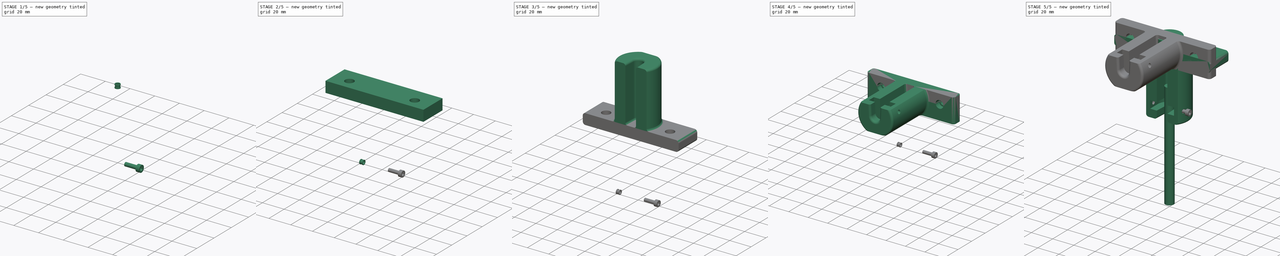
[diagram: build sequence overview — one tinted view per stage of 5, left to right]
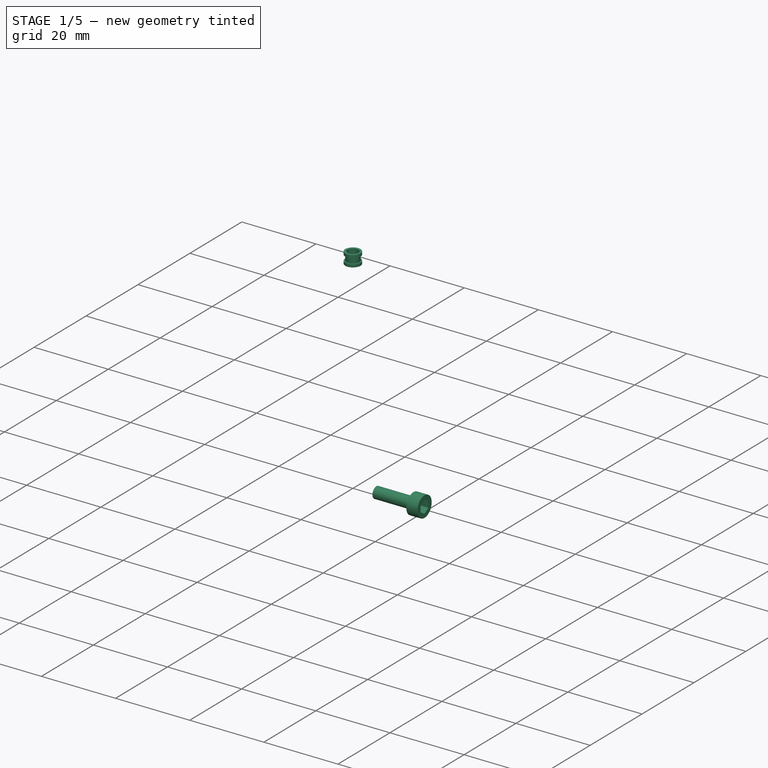
[diagram: stage 1 of 5 — iso view after this stage's code; geometry added in this stage tinted green]
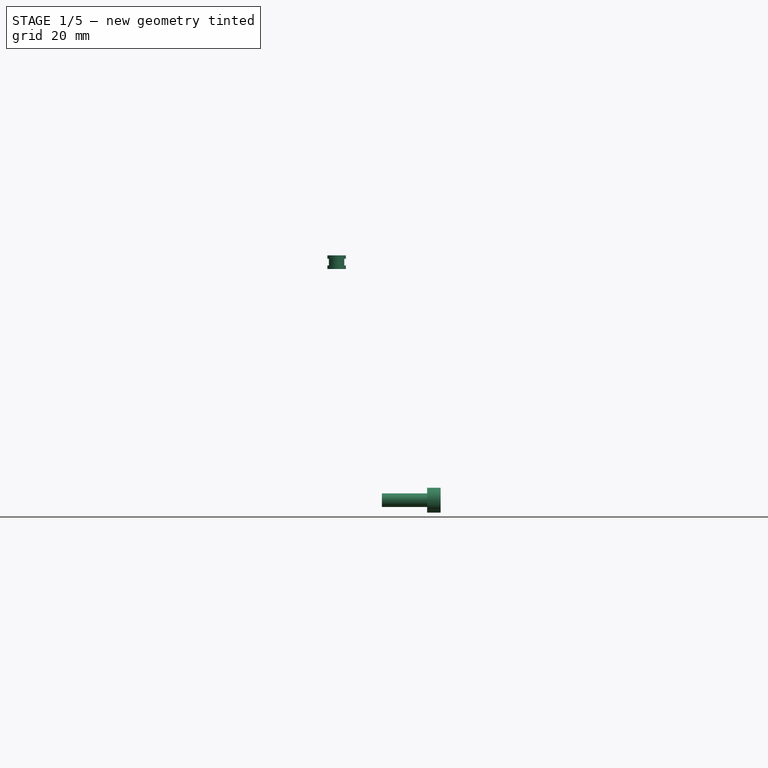
[diagram: stage 1 of 5 — front view after this stage's code; geometry added in this stage tinted green]
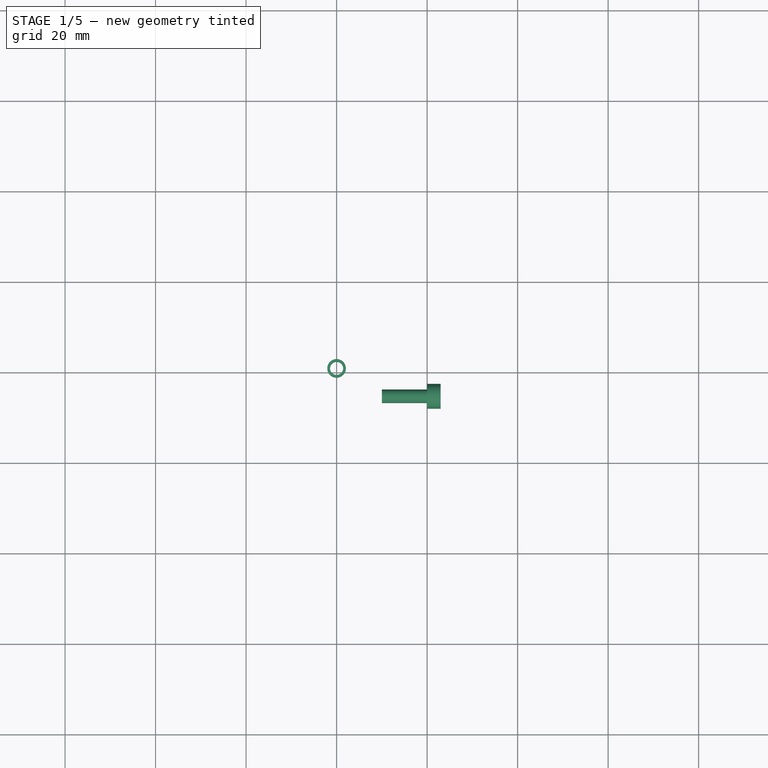
[diagram: stage 1 of 5 — top view after this stage's code; geometry added in this stage tinted green]
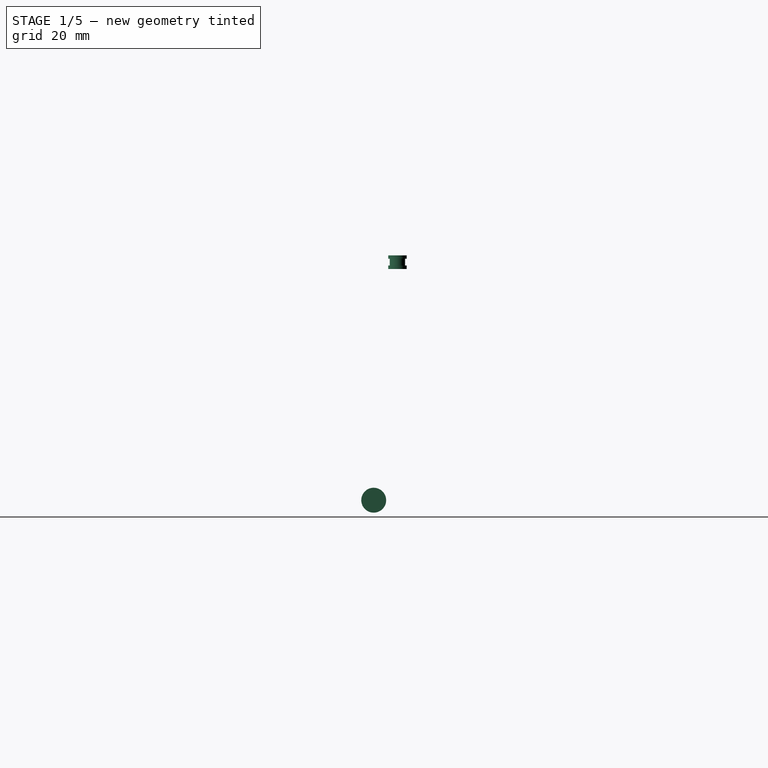
[diagram: stage 1 of 5 — right view after this stage's code; geometry added in this stage tinted green]
FCSTD DOCUMENT  (FreeCAD 0.17R)
Label: Z-Axis-Guide
License: All rights reserved
LicenseURL: http://en.wikipedia.org/wiki/All_rights_reserved
objects: Sketcher::SketchObject×11, PartDesign::Pad×5, PartDesign::Body×5, PartDesign::Pocket×4, App::DocumentObjectGroup×4, PartDesign::FeatureBase×4, PartDesign::Fillet×3, PartDesign::Revolution×2, Part::Cylinder×1, Part::Cut×1
note: 47 computed .brp shape members not serialized (recipe doc carries the construction recipe); baked Part::Feature solids carry a one-line shape summary decoded from their .brp

FEATURE [Sketcher::SketchObject] Sketch008
  MapMode = 5
  Placement = pos=(0,0,0) rot=(1,0,0;1.5708rad)
  Support = -> [XZ_Plane003]
  sketch-geometry (8):
    g0: LineSegment StartX=1.45 StartY=0 StartZ=0 EndX=2.05 EndY=0 EndZ=0
    g1: LineSegment StartX=2.05 StartY=0 StartZ=0 EndX=2.05 EndY=0.75 EndZ=0
    g2: LineSegment StartX=2.05 StartY=0.75 StartZ=0 EndX=1.7 EndY=0.75 EndZ=0
    g3: LineSegment StartX=1.7 StartY=0.75 StartZ=0 EndX=1.7 EndY=2.25 EndZ=0
    g4: LineSegment StartX=1.7 StartY=2.25 StartZ=0 EndX=2.05 EndY=2.25 EndZ=0
    g5: LineSegment StartX=2.05 StartY=2.25 StartZ=0 EndX=2.05 EndY=3 EndZ=0
    g6: LineSegment StartX=2.05 StartY=3 StartZ=0 EndX=1.45 EndY=3 EndZ=0
    g7: LineSegment StartX=1.45 StartY=3 StartZ=0 EndX=1.45 EndY=0 EndZ=0
  constraints (24):
    c: PointOnObject(g0,g-1)
    c: Horizontal(g0)
    c: Coincident(g0,g1)
    c: Vertical(g1)
    c: Coincident(g1,g2)
    c: Horizontal(g2)
    c: Coincident(g2,g3)
    c: Vertical(g3)
    c: Coincident(g3,g4)
    c: Horizontal(g4)
    c: Coincident(g4,g5)
    c: Vertical(g5)
    c: Coincident(g5,g6)
    c: Horizontal(g6)
    c: Coincident(g6,g7)
    c: Vertical(g7)
    c: Coincident(g0,g7)
    c: DistanceX(g-1,g0) = 1.45
    c: DistanceX(g-1,g0) = 2.05
    c: DistanceX(g-1,g2) = 1.7
    c: Equal(g2,g4)
    c: Equal(g5,g1)
    c: DistanceY(g0,g5) = 3
    c: DistanceY(g3,g3) = 1.5
FEATURE [PartDesign::Revolution] Revolution
  Angle = 360
  Axis = (0,0,1)
  Base = (0,0,0)
  Placement = pos=(0,0,0) rot=(1,0,0;1.5708rad)
  Profile = -> Sketch008
  ReferenceAxis = -> Sketch008 [V_Axis]
  Reversed = true
FEATURE [Sketcher::SketchObject] Sketch009
  MapMode = 5
  Support = -> [XY_Plane004]
  sketch-geometry (6):
    g0: LineSegment StartX=0 StartY=0 StartZ=0 EndX=2.75 EndY=0 EndZ=0
    g1: LineSegment StartX=2.75 StartY=0 StartZ=0 EndX=2.75 EndY=3 EndZ=0
    g2: LineSegment StartX=2.75 StartY=3 StartZ=0 EndX=1.5 EndY=3 EndZ=0
    g3: LineSegment StartX=1.5 StartY=3 StartZ=0 EndX=1.5 EndY=13 EndZ=0
    g4: LineSegment StartX=1.5 StartY=13 StartZ=0 EndX=0 EndY=13 EndZ=0
    g5: LineSegment StartX=0 StartY=13 StartZ=0 EndX=0 EndY=0 EndZ=0
  constraints (17):
    c: Coincident(g-1,g0)
    c: Horizontal(g0)
    c: Coincident(g0,g1)
    c: Vertical(g1)
    c: Coincident(g1,g2)
    c: Horizontal(g2)
    c: Coincident(g2,g3)
    c: Vertical(g3)
    c: Coincident(g3,g4)
    c: PointOnObject(g4,g-2)
    c: Horizontal(g4)
    c: Coincident(g4,g5)
    c: Coincident(g5,g0)
    c: DistanceX(g0,g0) = 2.75
    c: DistanceX(g-1,g2) = 1.5
    c: DistanceY(g1,g1) = 3
    c: DistanceY(g3,g3) = 10
FEATURE [PartDesign::Revolution] Revolution001
  Angle = 360
  Axis = (0,1,0)
  Base = (0,0,0)
  Profile = -> Sketch009
  ReferenceAxis = -> Sketch009 [V_Axis]
  Reversed = true
FEATURE [Sketcher::SketchObject] Sketch010
  MapMode = 5
  Placement = pos=(0,0,0) rot=(1,0,0;1.5708rad)
  Support = -> [Revolution001]
  sketch-geometry (7):
    g0: LineSegment StartX=1.5 StartY=-0.866025 StartZ=0 EndX=1.5 EndY=0.866025 EndZ=0
    g1: LineSegment StartX=1.5 StartY=0.866025 StartZ=0 EndX=0 EndY=1.73205 EndZ=0
    g2: LineSegment StartX=0 StartY=1.73205 StartZ=0 EndX=-1.5 EndY=0.866025 EndZ=0
    g3: LineSegment StartX=-1.5 StartY=0.866025 StartZ=0 EndX=-1.5 EndY=-0.866025 EndZ=0
    g4: LineSegment StartX=-1.5 StartY=-0.866025 StartZ=0 EndX=0 EndY=-1.73205 EndZ=0
    g5: LineSegment StartX=0 StartY=-1.73205 StartZ=0 EndX=1.5 EndY=-0.866025 EndZ=0
    g6: Circle [constr] CenterX=0 CenterY=0 CenterZ=0 NormalX=0 NormalY=0 NormalZ=1 AngleXU=0 Radius=1.73205
  constraints (16):
    c: Coincident(g0,g1)
    c: Coincident(g1,g2)
    c: Coincident(g2,g3)
    c: Coincident(g3,g4)
    c: Coincident(g4,g5)
    c: Coincident(g5,g0)
    c: Equal(g0, g1-g5) x5
    c: PointOnObject(g0,g6)
    c: PointOnObject(g1,g6)
    c: PointOnObject(g2,g6)
    c: PointOnObject(g3,g6)
    c: PointOnObject(g4,g6)
    c: PointOnObject(g5,g6)
    c: Coincident(g6,g-1)
    c: Vertical(g0)
    c: DistanceX(g2,g0) = 3
FEATURE [PartDesign::Pocket] Pocket003
  BaseFeature = -> Revolution001
  Length = 2
  Length2 = 100
  Profile = -> Sketch010
  Type = 0
FEATURE [PartDesign::Body] Body004  label="M3x10_Bearing_Fixation"
  Group = -> [Sketch009,Revolution001,Sketch010,Pocket003]
  Origin = -> Origin004
  Placement = pos=(-23,-5.25,-51.1) rot=(0,0,-1;1.5708rad)
  Tip = -> Pocket003
FEATURE [PartDesign::FeatureBase] Clone005  label="M3x10_Bearing_Fixation_2"
  BaseFeature = -> Body004
  Placement = pos=(23,-5.25,-51.1) rot=(0,0,1;1.5708rad)
FEATURE [App::DocumentObjectGroup] Group001  label="Assembly"
  Group = -> [Clone,Body003,Clone004,Body004,Clone005,Group003]
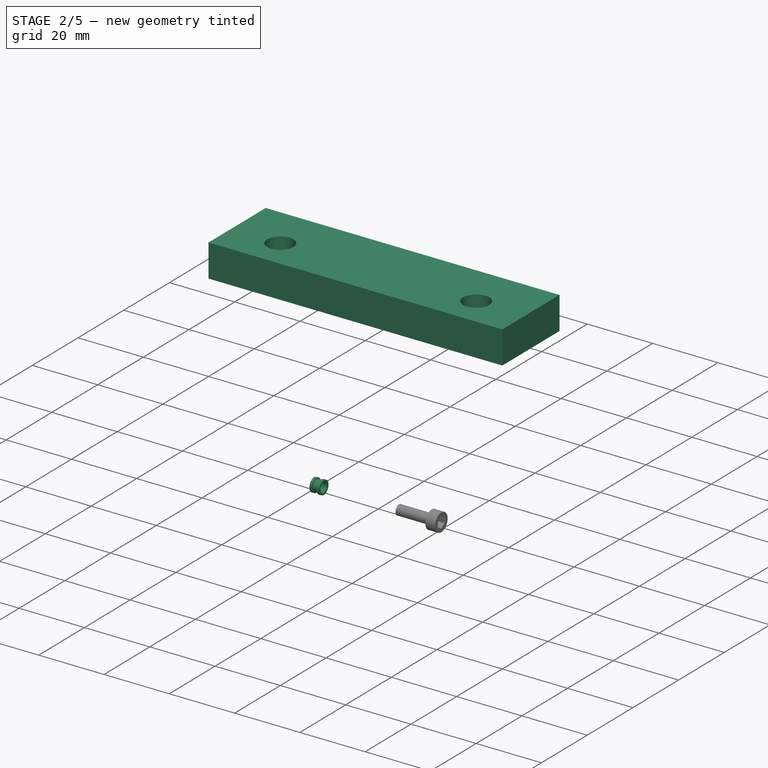
[diagram: stage 2 of 5 — iso view after this stage's code; geometry added in this stage tinted green]
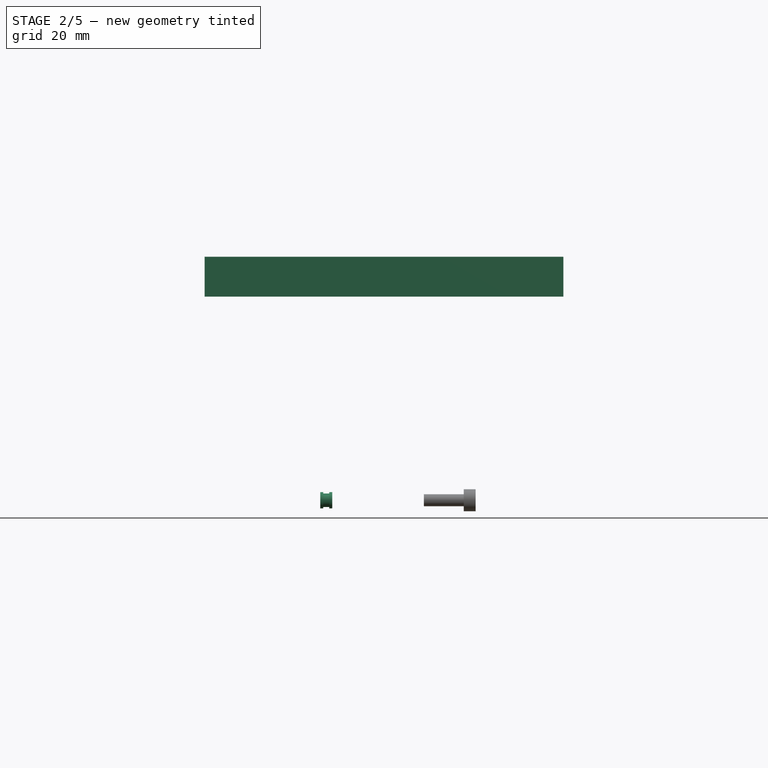
[diagram: stage 2 of 5 — front view after this stage's code; geometry added in this stage tinted green]
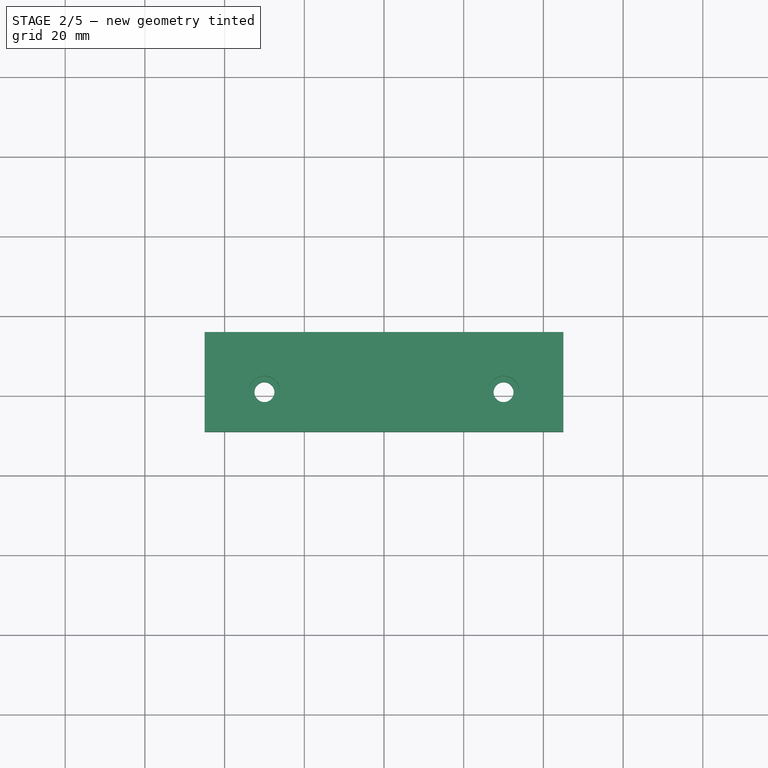
[diagram: stage 2 of 5 — top view after this stage's code; geometry added in this stage tinted green]
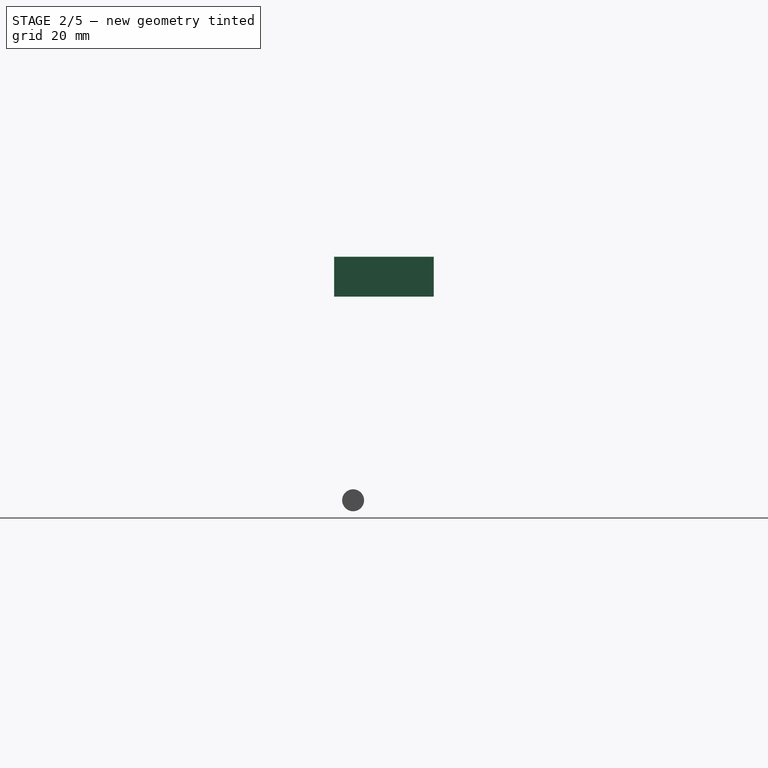
[diagram: stage 2 of 5 — right view after this stage's code; geometry added in this stage tinted green]
FEATURE [Sketcher::SketchObject] Sketch
  MapMode = 5
  Support = -> [XY_Plane]
  sketch-geometry (4):
    g0: LineSegment StartX=-45 StartY=15 StartZ=0 EndX=45 EndY=15 EndZ=0
    g1: LineSegment StartX=45 StartY=15 StartZ=0 EndX=45 EndY=-10 EndZ=0
    g2: LineSegment StartX=45 StartY=-10 StartZ=0 EndX=-45 EndY=-10 EndZ=0
    g3: LineSegment StartX=-45 StartY=-10 StartZ=0 EndX=-45 EndY=15 EndZ=0
  constraints (12):
    c: Coincident(g0,g1)
    c: Coincident(g1,g2)
    c: Coincident(g2,g3)
    c: Coincident(g3,g0)
    c: Horizontal(g0)
    c: Horizontal(g2)
    c: Vertical(g1)
    c: Vertical(g3)
    c: Symmetric(g0,g0,g-2)
    c: DistanceY(g1,g1) = 25
    c: DistanceX(g0,g0) = 90
    c: DistanceY(g1,g-1) = 10
FEATURE [PartDesign::Pad] Pad  label="BB_Baseplate"
  Length = 10
  Length2 = 100
  Profile = -> Sketch
  Type = 0
FEATURE [Sketcher::SketchObject] Sketch001
  ExternalGeometry = -> [Pad]
  MapMode = 5
  Placement = pos=(0,0,0) rot=(1,0,0;3.14159rad)
  Support = -> [Pad]
  sketch-geometry (4):
    g0: Circle CenterX=-30 CenterY=0 CenterZ=0 NormalX=0 NormalY=0 NormalZ=1 AngleXU=0 Radius=2.5
    g1: Circle CenterX=30 CenterY=0 CenterZ=0 NormalX=0 NormalY=0 NormalZ=1 AngleXU=0 Radius=2.5
    g2: GeomPoint X=0 Y=10 Z=0
    g3: LineSegment [constr] StartX=30 StartY=10 StartZ=0 EndX=30 EndY=0 EndZ=0
  constraints (11):
    c: PointOnObject(g0,g-1)
    c: PointOnObject(g1,g-1)
    c: Symmetric(g1,g0,g-2)
    c: Radius(g1) = 2.5
    c: Equal(g1,g0)
    c: PointOnObject(g2,g-4)
    c: PointOnObject(g2,g-2)
    c: PointOnObject(g3,g-4)
    c: Coincident(g3,g1)
    c: Vertical(g3)
    c: DistanceX(g2,g3) = 30
FEATURE [PartDesign::Pocket] Pocket  label="BB_Screwholes"
  BaseFeature = -> Pad
  Length = 5
  Length2 = 100
  Profile = -> Sketch001
  Type = 1
FEATURE [Sketcher::SketchObject] Sketch002
  ExternalGeometry = -> [Pocket]
  MapMode = 5
  Placement = pos=(0,0,10) rot=(0,0,1;0rad)
  Support = -> [Pocket]
  sketch-geometry (2):
    g0: Circle CenterX=-30 CenterY=0 CenterZ=0 NormalX=0 NormalY=0 NormalZ=1 AngleXU=0 Radius=4
    g1: Circle CenterX=30 CenterY=0 CenterZ=0 NormalX=0 NormalY=0 NormalZ=1 AngleXU=0 Radius=4
  constraints (4):
    c: Coincident(g0,g-3)
    c: Coincident(g1,g-4)
    c: Radius(g1) = 4
    c: Equal(g1,g0)
FEATURE [PartDesign::Pocket] Pocket001  label="BB_Screwholes_sunk"
  BaseFeature = -> Pocket
  Length = 5
  Length2 = 100
  Profile = -> Sketch002
  Type = 0
FEATURE [App::DocumentObjectGroup] Group002  label="Print_Me"
  Group = -> [Clone003]
FEATURE [PartDesign::FeatureBase] Clone004  label="Press-In-Bushing_M3x3mm_2"
  BaseFeature = -> Body003
  Placement = pos=(-16,-5.25,-51.1) rot=(0,1,0;1.5708rad)
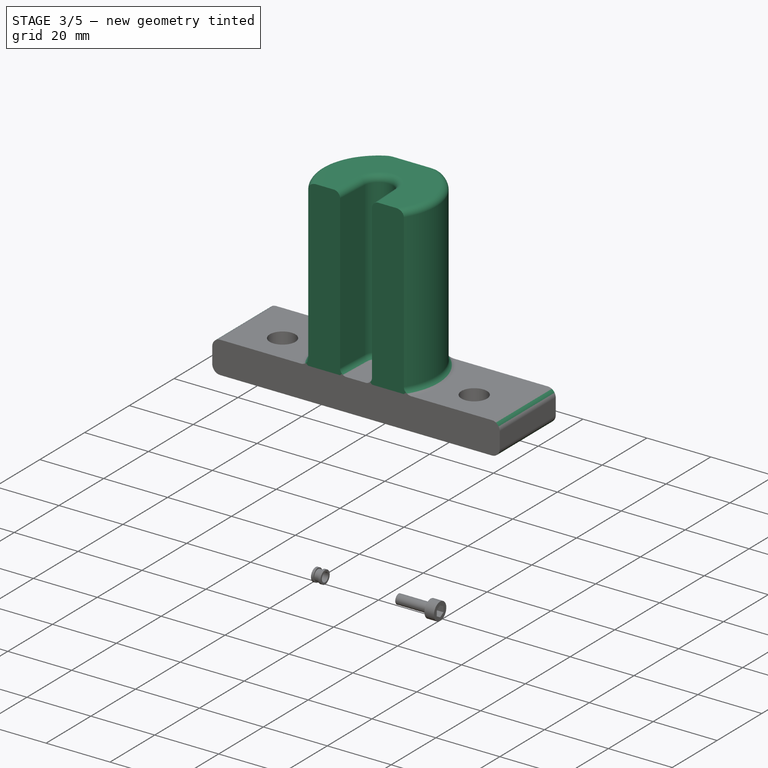
[diagram: stage 3 of 5 — iso view after this stage's code; geometry added in this stage tinted green]
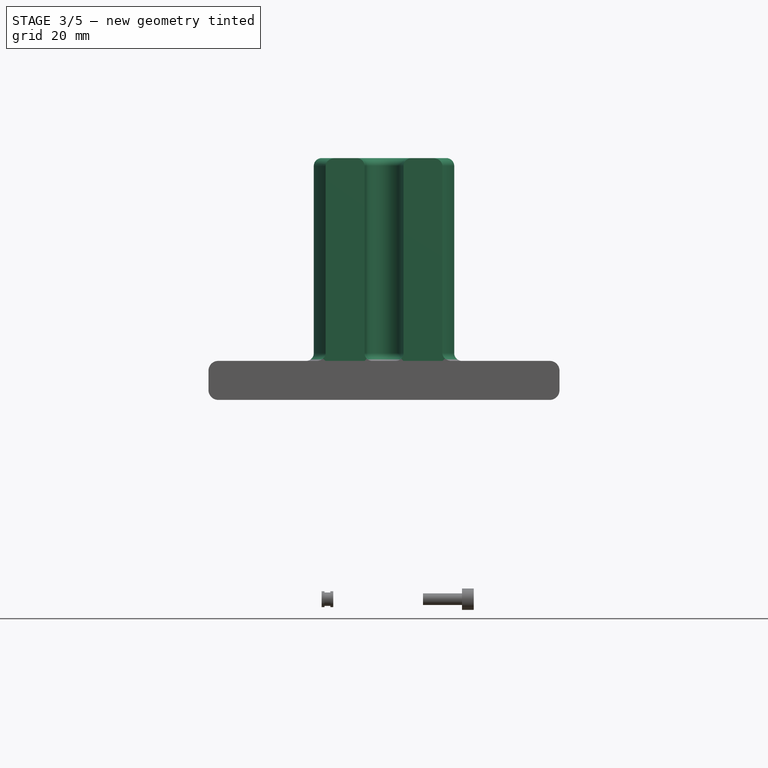
[diagram: stage 3 of 5 — front view after this stage's code; geometry added in this stage tinted green]
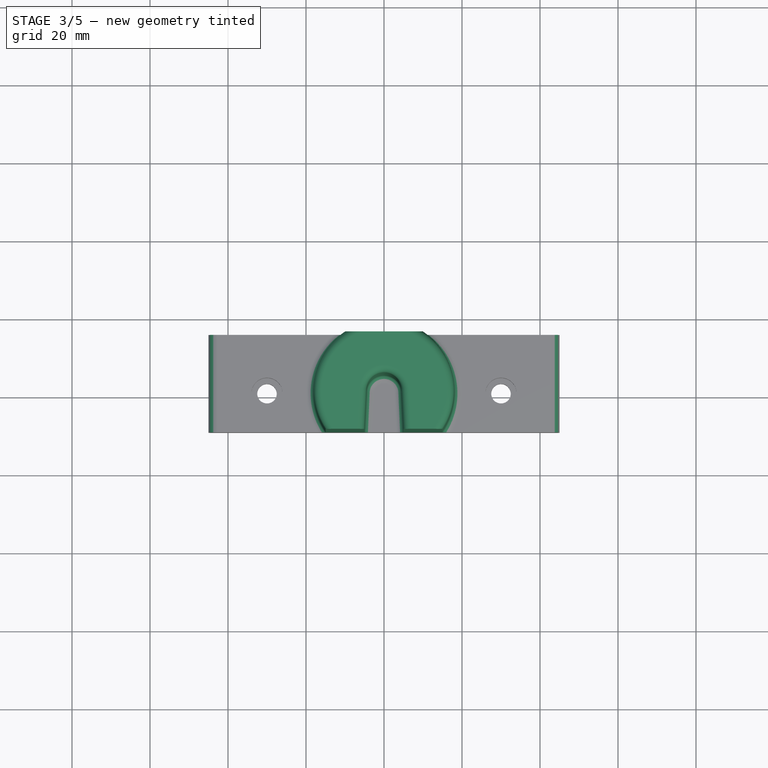
[diagram: stage 3 of 5 — top view after this stage's code; geometry added in this stage tinted green]
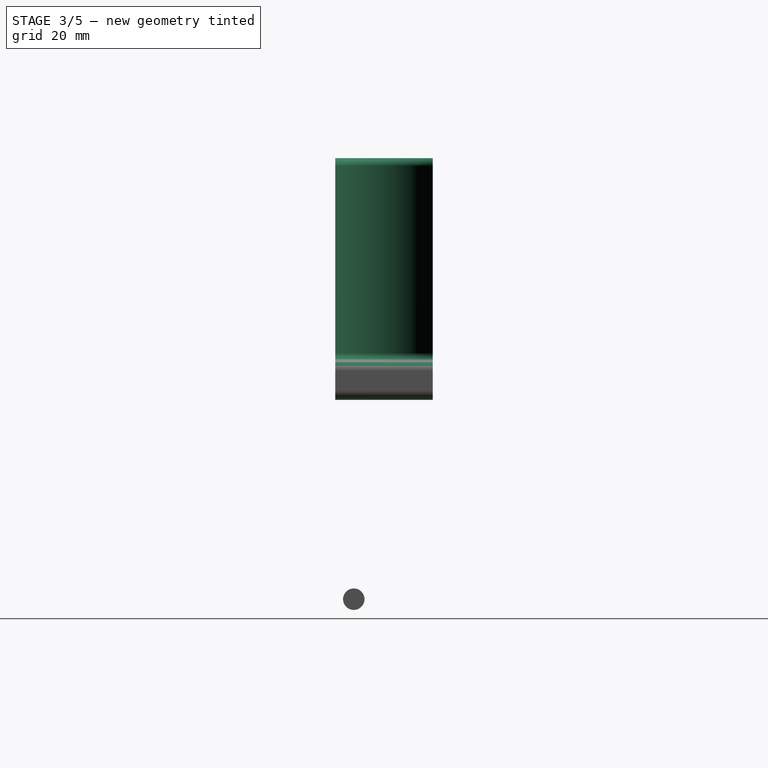
[diagram: stage 3 of 5 — right view after this stage's code; geometry added in this stage tinted green]
FEATURE [Sketcher::SketchObject] Sketch003
  ExternalGeometry = -> [Pocket001]
  MapMode = 5
  Placement = pos=(0,0,10) rot=(0,0,1;0rad)
  Support = -> [Pocket001]
  sketch-geometry (4):
    g0: ArcOfCircle CenterX=0 CenterY=0 CenterZ=0 NormalX=0 NormalY=0 NormalZ=1 AngleXU=0 Radius=18 StartAngle=5.69415 EndAngle=7.2683
    g1: LineSegment StartX=14.9666 StartY=-10 StartZ=0 EndX=-14.9666 EndY=-10 EndZ=0
    g2: LineSegment StartX=9.94987 StartY=15 StartZ=0 EndX=-9.94987 EndY=15 EndZ=0
    g3: ArcOfCircle CenterX=0 CenterY=0 CenterZ=0 NormalX=0 NormalY=0 NormalZ=1 AngleXU=0 Radius=18 StartAngle=2.15648 EndAngle=3.73062
  constraints (12):
    c: Coincident(g0,g-1)
    c: Horizontal(g1)
    c: Coincident(g0,g1)
    c: Coincident(g3,g1)
    c: PointOnObject(g3,g-4)
    c: Horizontal(g2)
    c: Equal(g0,g3)
    c: Coincident(g0,g2)
    c: Coincident(g3,g2)
    c: Coincident(g0,g3)
    c: PointOnObject(g0,g-3)
    c: Radius(g0) = 18
FEATURE [PartDesign::Pad] Pad001  label="BB_Dome"
  BaseFeature = -> Pocket001
  Length = 52
  Length2 = 100
  Profile = -> Sketch003
  Type = 0
FEATURE [Sketcher::SketchObject] Sketch004
  ExternalGeometry = -> [Pad001]
  MapMode = 5
  Placement = pos=(0,0,62) rot=(0,0,1;0rad)
  Support = -> [Pad001]
  sketch-geometry (4):
    g0: ArcOfCircle CenterX=0 CenterY=0 CenterZ=0 NormalX=0 NormalY=0 NormalZ=1 AngleXU=0 Radius=4.5 StartAngle=0 EndAngle=3.14159
    g1: LineSegment StartX=5 StartY=-10 StartZ=0 EndX=4.5 EndY=0 EndZ=0
    g2: LineSegment StartX=-4.5 StartY=-1e-12 StartZ=0 EndX=-5 EndY=-10 EndZ=0
    g3: LineSegment StartX=-5 StartY=-10 StartZ=0 EndX=5 EndY=-10 EndZ=0
  constraints (4):
    c: Coincident(g2,g3)
    c: Coincident(g0,g2)
    c: Coincident(g0,g1)
    c: Coincident(g1,g3)
FEATURE [PartDesign::Pocket] Pocket002  label="BB_Cutout_8mm_Axis"
  BaseFeature = -> Pad001
  Length = 52
  Length2 = 100
  Profile = -> Sketch004
  Type = 0
FEATURE [PartDesign::Body] Body003  label="Press-In-Bushing_M3x3mm"
  Group = -> [Sketch008,Revolution]
  Origin = -> Origin003
  Placement = pos=(13,-5.25,-51.1) rot=(0,1,0;1.5708rad)
  Tip = -> Revolution
FEATURE [App::DocumentObjectGroup] Group003  label="Illustration"
  Group = -> [Body002,Cylinder]
FEATURE [PartDesign::Fillet] Fillet  label="BB_Fillet_Bottom"
  Base = -> Pocket002 [Edge8,Edge11,Edge12,Edge9]
  BaseFeature = -> Pocket002
  Radius = 2.5
FEATURE [PartDesign::Fillet] Fillet003  label="BB_Filltet_Top"
  Base = -> Fillet [Edge45,Edge49,Edge51,Edge59,Edge34,Edge23]
  BaseFeature = -> Fillet
  Radius = 2
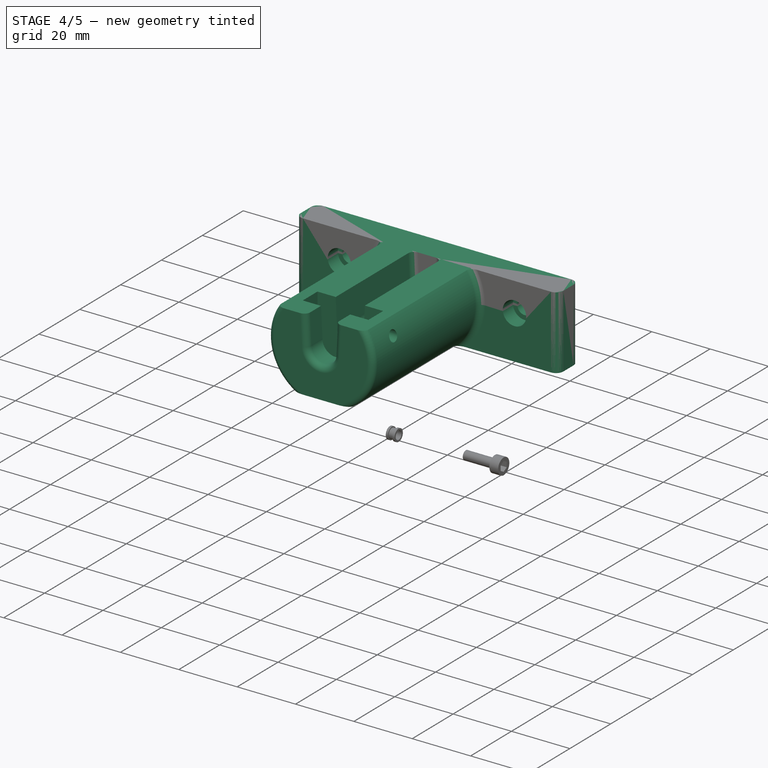
[diagram: stage 4 of 5 — iso view after this stage's code; geometry added in this stage tinted green]
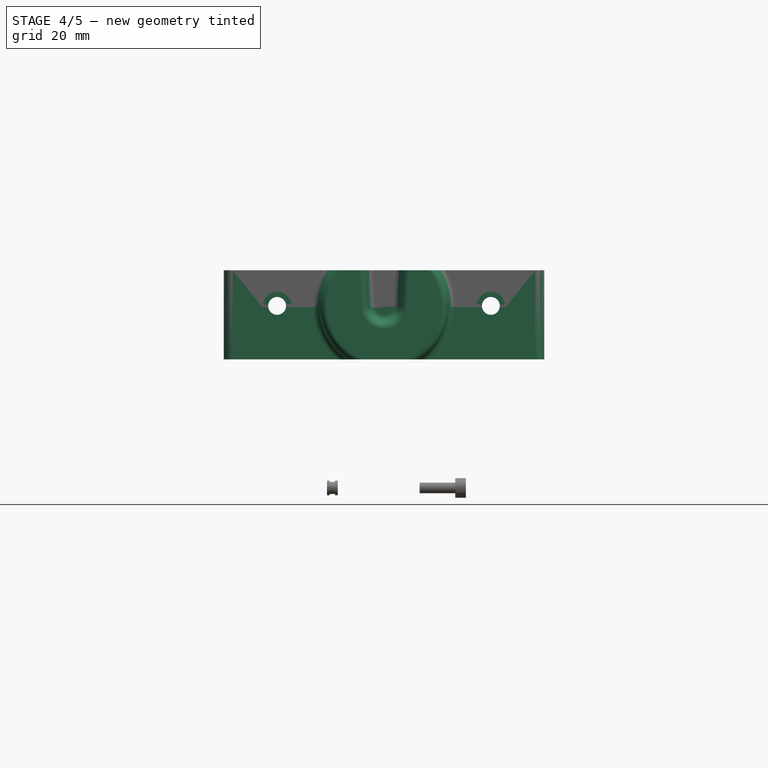
[diagram: stage 4 of 5 — front view after this stage's code; geometry added in this stage tinted green]
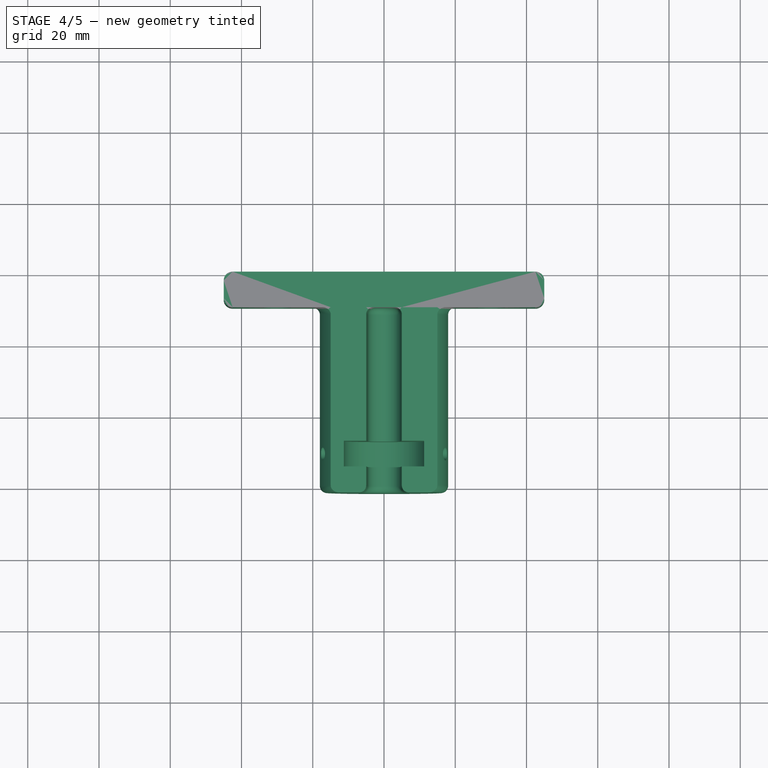
[diagram: stage 4 of 5 — top view after this stage's code; geometry added in this stage tinted green]
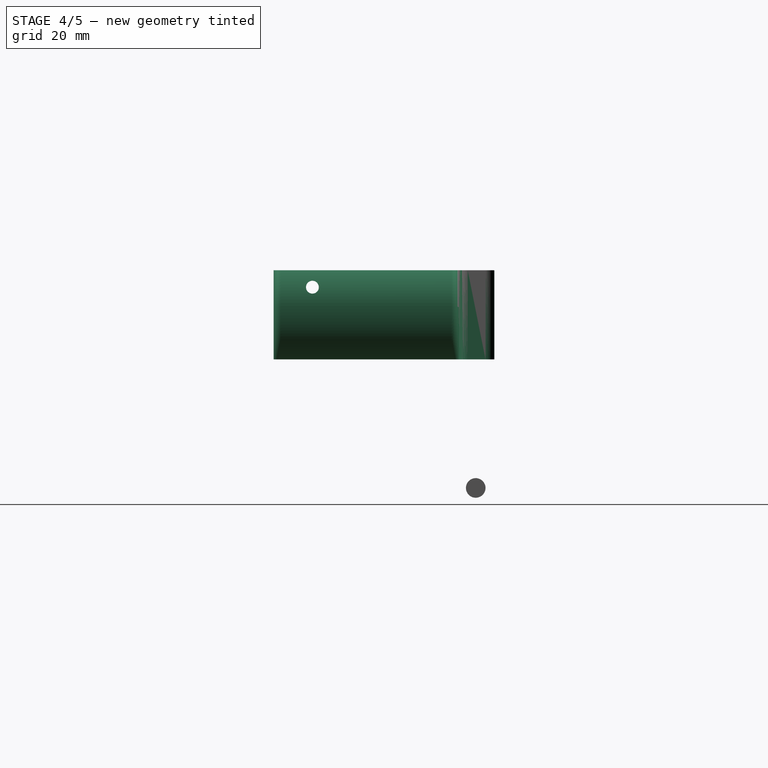
[diagram: stage 4 of 5 — right view after this stage's code; geometry added in this stage tinted green]
FEATURE [Sketcher::SketchObject] Sketch005
  MapMode = 5
  Support = -> [XY_Plane001]
  sketch-geometry (4):
    g0: ArcOfCircle CenterX=0 CenterY=0 CenterZ=0 NormalX=0 NormalY=0 NormalZ=1 AngleXU=0 Radius=11.25 StartAngle=0 EndAngle=3.14159
    g1: LineSegment StartX=-11.25 StartY=-2e-12 StartZ=0 EndX=-11.25 EndY=-10.5 EndZ=0
    g2: LineSegment StartX=-11.25 StartY=-10.5 StartZ=0 EndX=11.25 EndY=-10.5 EndZ=0
    g3: LineSegment StartX=11.25 StartY=-10.5 StartZ=0 EndX=11.25 EndY=0 EndZ=0
  constraints (12):
    c: Coincident(g0,g-1)
    c: Radius(g0) = 11.25
    c: Coincident(g1,g2)
    c: Horizontal(g2)
    c: Coincident(g2,g3)
    c: Symmetric(g1,g2,g-2)
    c: Coincident(g0,g3)
    c: Coincident(g0,g1)
    c: DistanceY(g2,g0) = 10.5
    c: PointOnObject(g0,g-1)
    c: Vertical(g1)
    c: PointOnObject(g0,g-1)
FEATURE [PartDesign::Pad] Pad002  label="Bearing_Coutout"
  Length = 7.2
  Length2 = 100
  Profile = -> Sketch005
  Type = 0
FEATURE [Sketcher::SketchObject] Sketch006
  ExternalGeometry = -> [Pad002]
  MapMode = 5
  Placement = pos=(-11.25,0,0) rot=(0.57735,-0.57735,-0.57735;2.0944rad)
  Support = -> [Pad002]
  sketch-geometry (3):
    g0: Circle CenterX=5.25 CenterY=3.6 CenterZ=0 NormalX=0 NormalY=0 NormalZ=1 AngleXU=0 Radius=1.8
    g1: LineSegment [constr] StartX=10.5 StartY=3.6 StartZ=0 EndX=5.25 EndY=3.6 EndZ=0
    g2: LineSegment [constr] StartX=5.25 StartY=3.6 StartZ=0 EndX=5.25 EndY=7.2 EndZ=0
  constraints (9):
    c: PointOnObject(g1,g-3)
    c: Coincident(g1,g0)
    c: Horizontal(g1)
    c: Coincident(g2,g0)
    c: Vertical(g2)
    c: PointOnObject(g2,g-4)
    c: Symmetric(g-3,g-4,g1)
    c: Symmetric(g-4,g-4,g2)
    c: Radius(g0) = 1.8
FEATURE [PartDesign::Pad] Pad003  label="Negative_Holes_Fixation_Screws"
  BaseFeature = -> Pad002
  Length = 12
  Length2 = 35
  Profile = -> Sketch006
  Type = 4
FEATURE [PartDesign::Body] Body  label="BaseBody"
  Group = -> [Sketch,Pad,Sketch001,Pocket,Sketch002,Pocket001,Sketch003,Pad001,Sketch004,Pocket002,Fillet,Fillet003]
  Origin = -> Origin
  Tip = -> Fillet003
FEATURE [Part::Cut] Cut  label="Z-Axis-Guide"
  Base = -> Body
  Tool = -> Body001
FEATURE [PartDesign::FeatureBase] Clone003  label="Z-Axis_Guide"
  BaseFeature = -> Cut
  Placement = pos=(0,0,0) rot=(0,0.707107,-0.707107;3.14159rad)
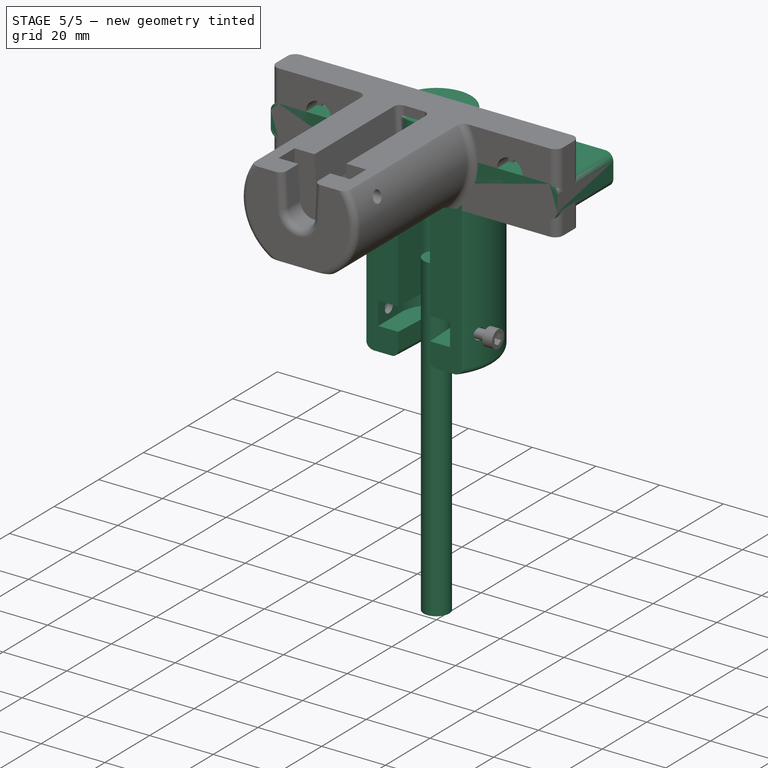
[diagram: stage 5 of 5 — iso view after this stage's code; geometry added in this stage tinted green]
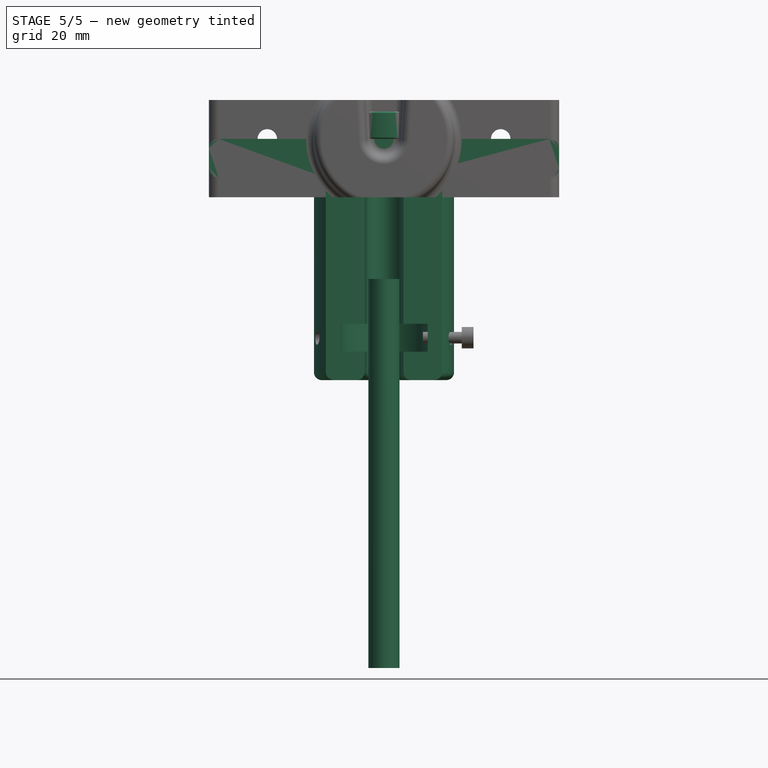
[diagram: stage 5 of 5 — front view after this stage's code; geometry added in this stage tinted green]
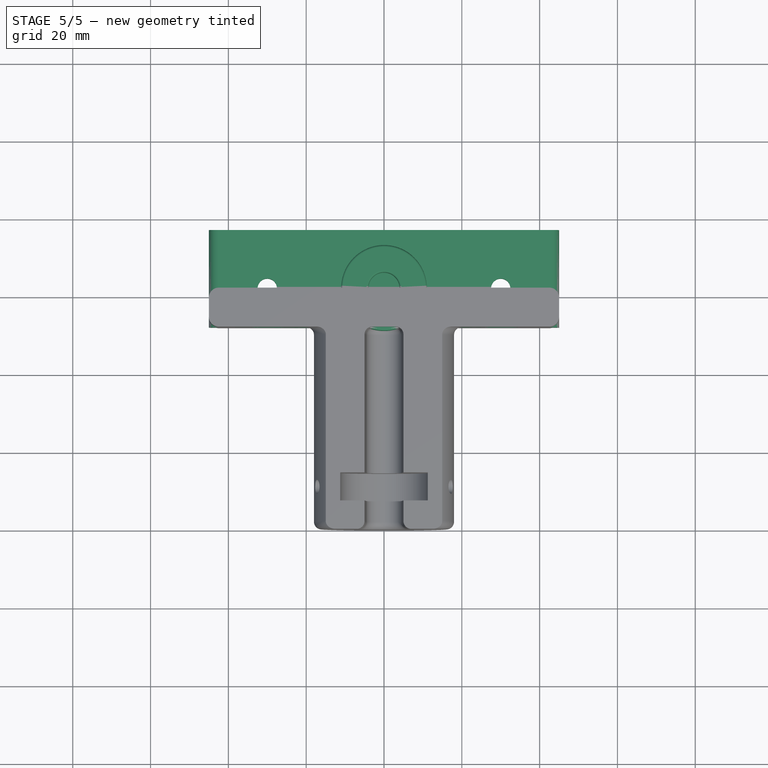
[diagram: stage 5 of 5 — top view after this stage's code; geometry added in this stage tinted green]
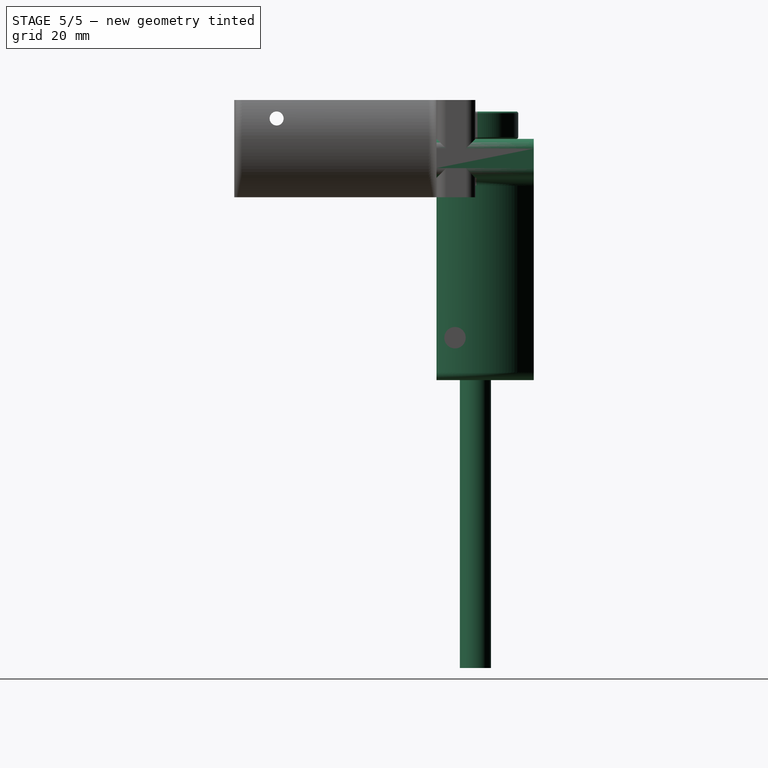
[diagram: stage 5 of 5 — right view after this stage's code; geometry added in this stage tinted green]
FEATURE [PartDesign::Body] Body001  label="BallBearingCutout"
  Group = -> [Sketch005,Pad002,Sketch006,Pad003]
  Origin = -> Origin001
  Placement = pos=(0,0,47.5) rot=(0,0,1;0rad)
  Tip = -> Pad003
FEATURE [Sketcher::SketchObject] Sketch007
  MapMode = 5
  Support = -> [XY_Plane002]
  sketch-geometry (2):
    g0: Circle CenterX=0 CenterY=0 CenterZ=0 NormalX=0 NormalY=0 NormalZ=1 AngleXU=0 Radius=11
    g1: Circle CenterX=0 CenterY=0 CenterZ=0 NormalX=0 NormalY=0 NormalZ=1 AngleXU=0 Radius=4
  constraints (4):
    c: Coincident(g0,g-1)
    c: Coincident(g1,g-1)
    c: Radius(g1) = 4
    c: Radius(g0) = 11
FEATURE [PartDesign::Pad] Pad004
  Length = 7.05
  Length2 = 100
  Profile = -> Sketch007
  Type = 0
FEATURE [PartDesign::Fillet] Fillet002
  Base = -> Pad004 [Face4,Face3]
  BaseFeature = -> Pad004
  Radius = 0.5
FEATURE [PartDesign::Body] Body002  label="BallBearing_608"
  Group = -> [Sketch007,Pad004,Fillet002]
  Origin = -> Origin002
  Placement = pos=(0,0,-47.6) rot=(0,1,0;3.14159rad)
  Tip = -> Fillet002
FEATURE [Part::Cylinder] Cylinder  label="8mm-Rod"
  Angle = 360
  AttacherType = Attacher::AttachEngine3D
  Height = 100
  Placement = pos=(0,0,-36) rot=(0,1,0;3.14159rad)
  Radius = 4
FEATURE [App::DocumentObjectGroup] Group  label="DesignParts"
  Group = -> [Cut]
FEATURE [PartDesign::FeatureBase] Clone  label="Z-Axis-Guide001"
  BaseFeature = -> Cut
  Placement = pos=(0,0,0) rot=(0,1,0;3.14159rad)
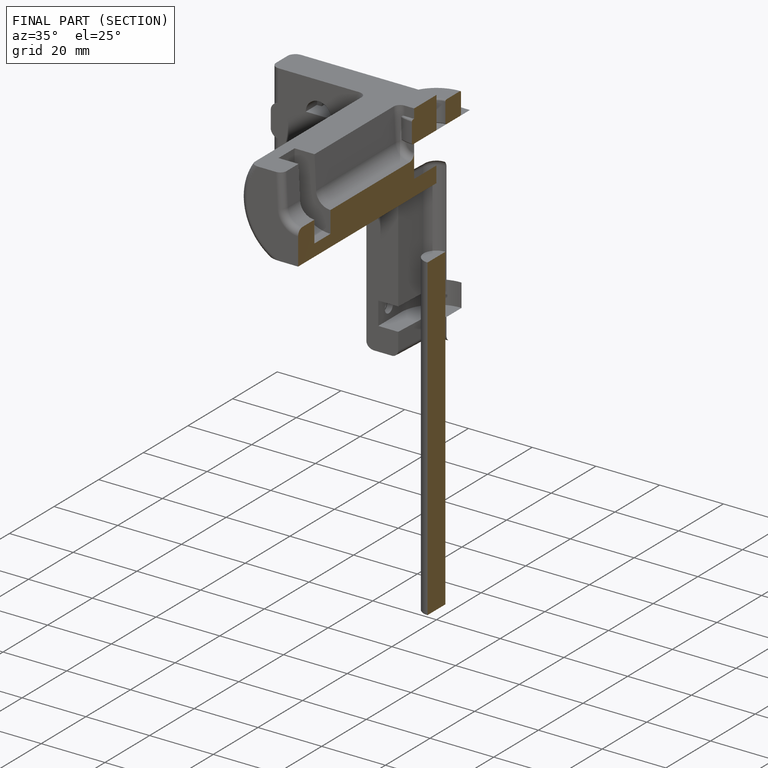
[diagram: finished part — half-section view (interior)]
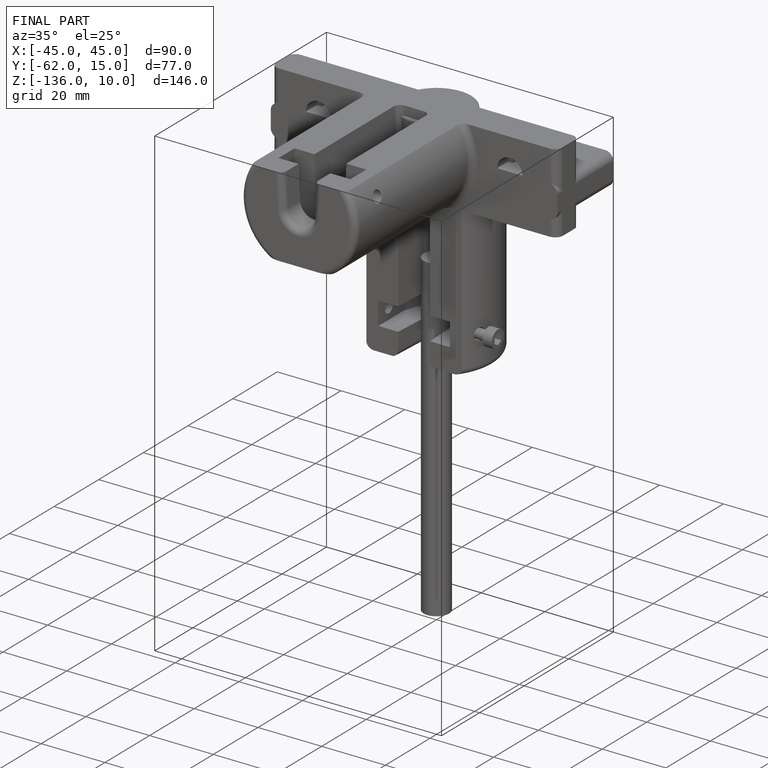
[diagram: finished part — iso view with bounding-box wireframe]
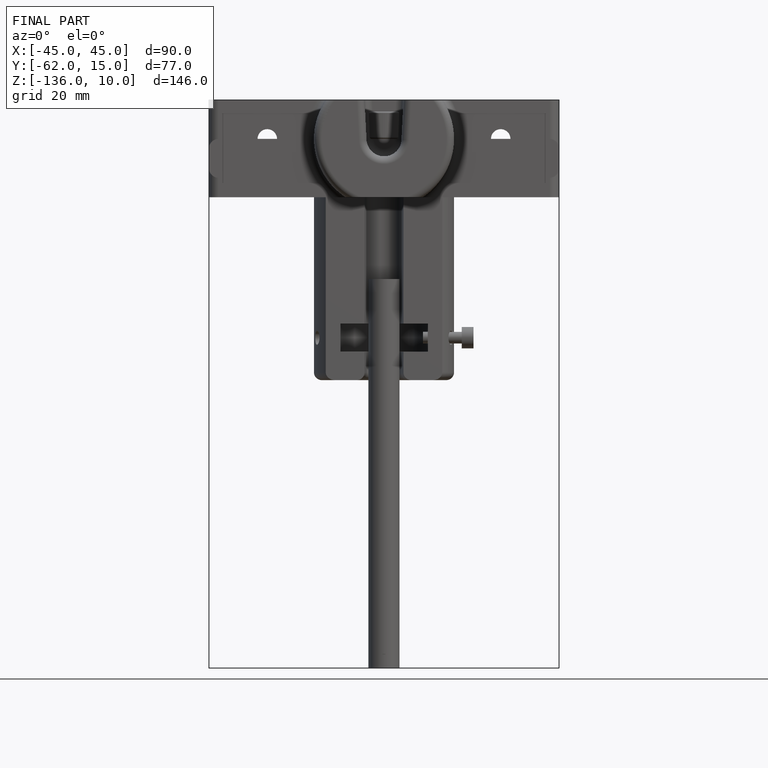
[diagram: finished part — front view with bounding-box wireframe]
